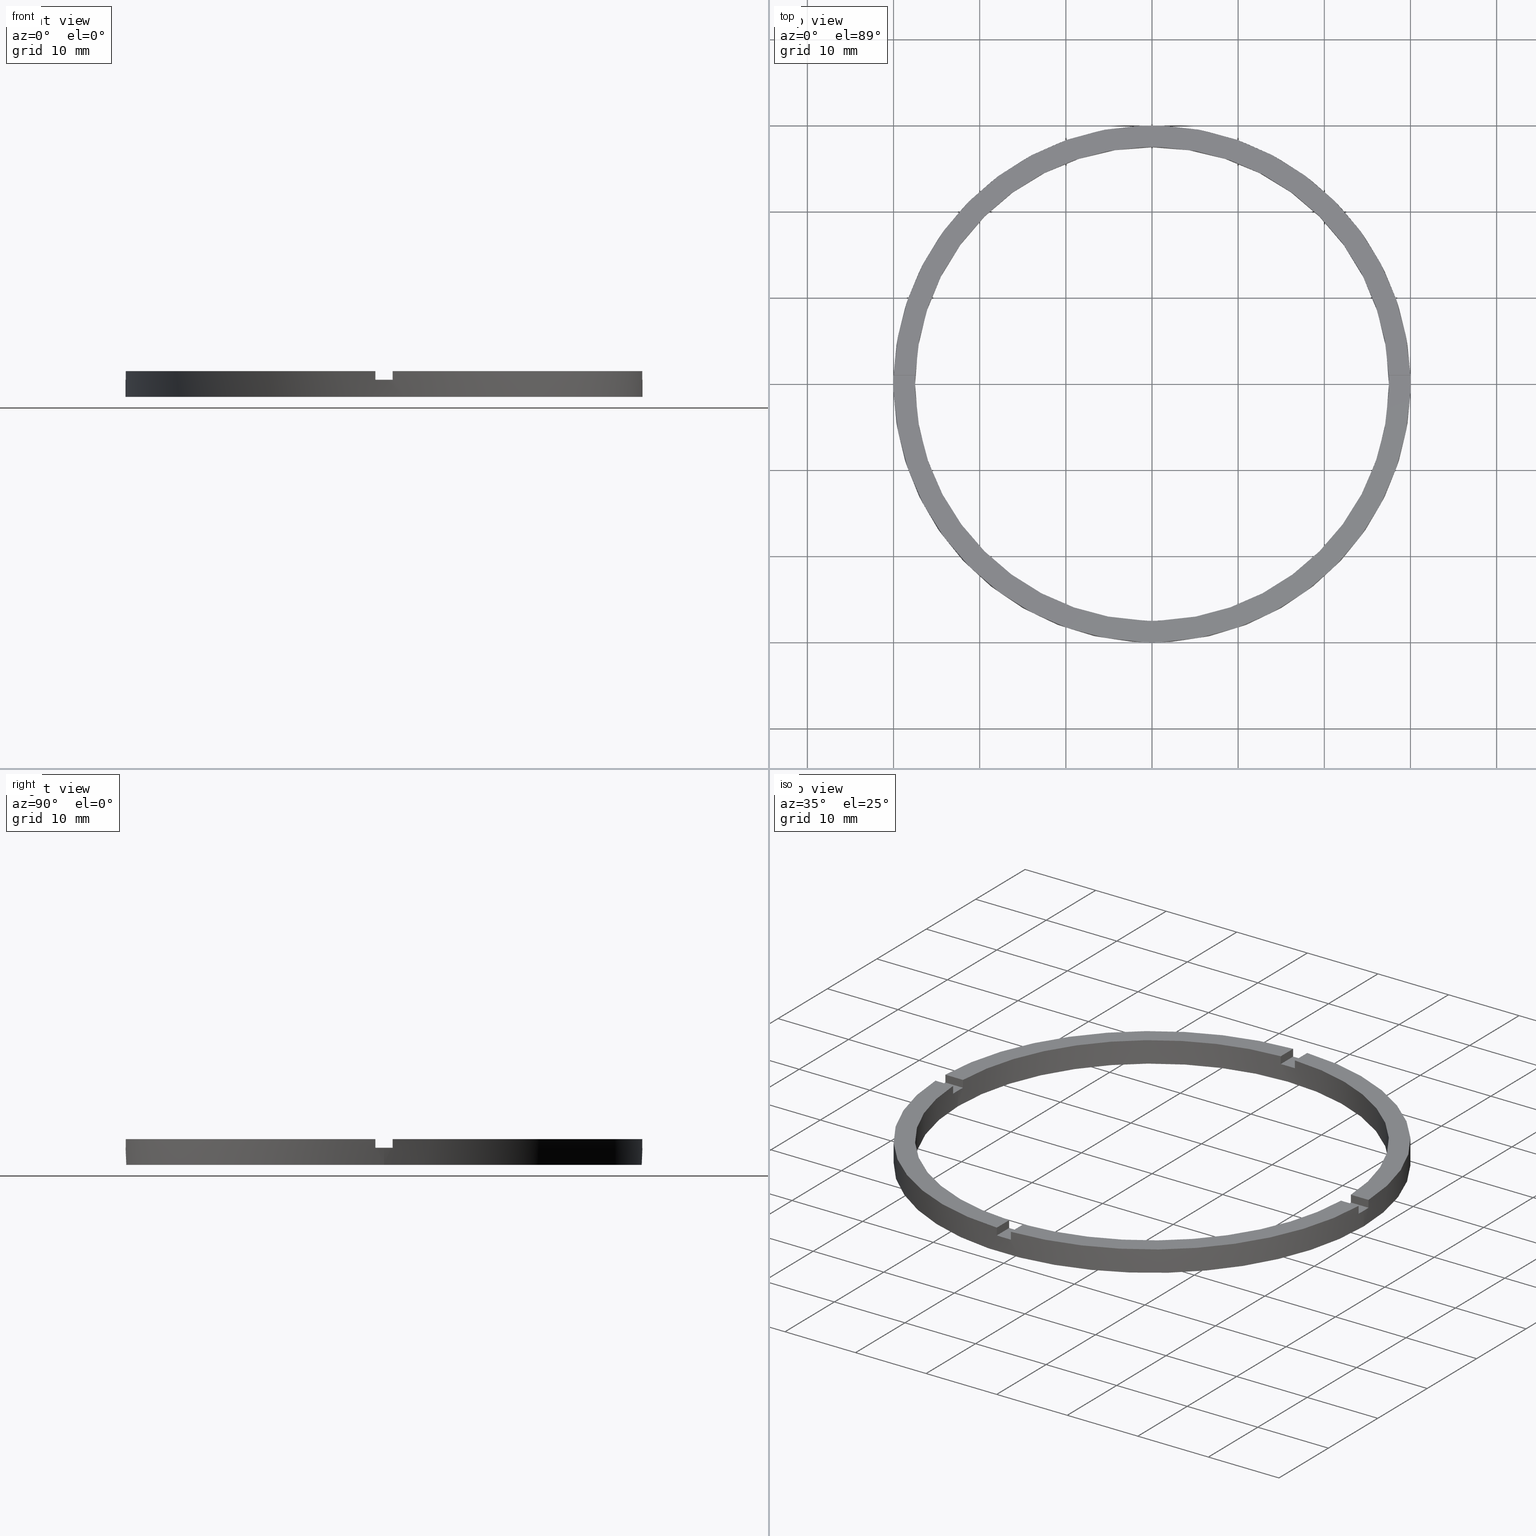
[diagram: canonical four-view strip — front | top / right | iso, engineering-drawing reading convention]
A machine part, canonical four-view strip (front | top / right | iso — engineering-drawing reading convention). The complete STEP part file that produces these views, byte-faithful:
ISO-10303-21;
HEADER;
FILE_DESCRIPTION (( 'STEP AP203' ),
    '1' );
FILE_NAME ('514124.step',
    '2024-12-26T02:39:47',
    ( 'MSI' ),
    ( '' ),
    'SwSTEP 2.0',
    'SolidWorks 2020',
    '' );
FILE_SCHEMA (( 'CONFIG_CONTROL_DESIGN' ));
ENDSEC;

DATA;
#1 = ORIENTED_EDGE ( 'NONE', *, *, #680, .T. ) ;
#2 = ORIENTED_EDGE ( 'NONE', *, *, #440, .F. ) ;
#3 = ORIENTED_EDGE ( 'NONE', *, *, #481, .T. ) ;
#4 = DIRECTION ( 'NONE',  ( 0.000000000000000000, 0.000000000000000000, 1.000000000000000000 ) ) ;
#5 = DIRECTION ( 'NONE',  ( 0.000000000000000000, 0.000000000000000000, 1.000000000000000000 ) ) ;
#6 = CC_DESIGN_DATE_AND_TIME_ASSIGNMENT ( #98, #469, ( #209 ) ) ;
#7 = EDGE_CURVE ( 'NONE', #695, #178, #728, .T. ) ;
#8 = DIRECTION ( 'NONE',  ( 0.000000000000000000, 0.000000000000000000, 1.000000000000000000 ) ) ;
#9 = DIRECTION ( 'NONE',  ( 1.000000000000000000, 0.000000000000000000, -0.000000000000000000 ) ) ;
#10 = CARTESIAN_POINT ( 'NONE',  ( 27.48181216732259458, 0.9999999999998436806, 3.000000000000000000 ) ) ;
#11 = EDGE_CURVE ( 'NONE', #430, #458, #204, .T. ) ;
#12 = DIRECTION ( 'NONE',  ( -0.000000000000000000, -0.000000000000000000, -1.000000000000000000 ) ) ;
#13 = VECTOR ( 'NONE', #657, 1000.000000000000000 ) ;
#14 = LINE ( 'NONE', #267, #279 ) ;
#15 = CARTESIAN_POINT ( 'NONE',  ( -1.000000000000159428, -27.48181216732258392, 3.000000000000000000 ) ) ;
#16 = DIRECTION ( 'NONE',  ( -0.000000000000000000, -0.000000000000000000, -1.000000000000000000 ) ) ;
#17 = DIRECTION ( 'NONE',  ( -1.951563910473907735E-16, 1.000000000000000000, 0.000000000000000000 ) ) ;
#18 =( NAMED_UNIT ( * ) SI_UNIT ( $, .STERADIAN. ) SOLID_ANGLE_UNIT ( ) );
#19 = FACE_OUTER_BOUND ( 'NONE', #399, .T. ) ;
#20 = EDGE_CURVE ( 'NONE', #464, #458, #719, .T. ) ;
#21 = CARTESIAN_POINT ( 'NONE',  ( -1.000000000000027089, 29.98332870112989568, 2.000000000000000000 ) ) ;
#22 = VECTOR ( 'NONE', #313, 1000.000000000000000 ) ;
#23 = DIRECTION ( 'NONE',  ( 0.000000000000000000, 0.000000000000000000, 1.000000000000000000 ) ) ;
#24 = DIRECTION ( 'NONE',  ( 0.000000000000000000, -0.000000000000000000, 1.000000000000000000 ) ) ;
#25 = DIRECTION ( 'NONE',  ( 1.000000000000000000, 0.000000000000000000, 0.000000000000000000 ) ) ;
#26 = FACE_OUTER_BOUND ( 'NONE', #684, .T. ) ;
#27 = VECTOR ( 'NONE', #537, 1000.000000000000000 ) ;
#28 = PLANE ( 'NONE',  #439 ) ;
#29 = FACE_OUTER_BOUND ( 'NONE', #169, .T. ) ;
#30 = DIRECTION ( 'NONE',  ( -1.000000000000000000, 2.168404344971008560E-17, 0.000000000000000000 ) ) ;
#31 = DIRECTION ( 'NONE',  ( 1.000000000000000000, 0.000000000000000000, 0.000000000000000000 ) ) ;
#32 = FACE_OUTER_BOUND ( 'NONE', #685, .T. ) ;
#33 = LINE ( 'NONE', #15, #296 ) ;
#34 = CIRCLE ( 'NONE', #760, 27.50000000000000000 ) ;
#35 = LINE ( 'NONE', #554, #299 ) ;
#36 = CARTESIAN_POINT ( 'NONE',  ( -27.48181216732259102, 0.9999999999999722444, 2.000000000000000000 ) ) ;
#37 = CIRCLE ( 'NONE', #153, 27.50000000000000000 ) ;
#38 = FACE_OUTER_BOUND ( 'NONE', #168, .T. ) ;
#39 = APPROVAL_DATE_TIME ( #41, #475 ) ;
#40 = CARTESIAN_POINT ( 'NONE',  ( 19.99999999999999289, -1.000000000000156763, 2.000000000000000000 ) ) ;
#41 = DATE_AND_TIME ( #559, #605 ) ;
#42 = VECTOR ( 'NONE', #16, 1000.000000000000000 ) ;
#43 = PRODUCT_DEFINITION_FORMATION_WITH_SPECIFIED_SOURCE ( '�κ�', '', #176, .NOT_KNOWN. ) ;
#44 = EDGE_CURVE ( 'NONE', #431, #124, #722, .T. ) ;
#45 = AXIS2_PLACEMENT_3D ( 'NONE', #59, #265, #444 ) ;
#46 = DIRECTION ( 'NONE',  ( -0.000000000000000000, -0.000000000000000000, -1.000000000000000000 ) ) ;
#47 = DIRECTION ( 'NONE',  ( 1.000000000000000000, 0.000000000000000000, 0.000000000000000000 ) ) ;
#48 = EDGE_CURVE ( 'NONE', #763, #777, #471, .T. ) ;
#49 = ADVANCED_FACE ( 'NONE', ( #278 ), #587, .T. ) ;
#50 = DIRECTION ( 'NONE',  ( -1.301042606982605074E-16, 1.000000000000000000, -0.000000000000000000 ) ) ;
#51 = AXIS2_PLACEMENT_3D ( 'NONE', #626, #574, #225 ) ;
#52 = DIRECTION ( 'NONE',  ( -1.000000000000000000, -1.951563910473907735E-16, 0.000000000000000000 ) ) ;
#53 = CARTESIAN_POINT ( 'NONE',  ( 29.98332870112989212, -1.000000000000156097, 2.000000000000000000 ) ) ;
#54 = AXIS2_PLACEMENT_3D ( 'NONE', #368, #648, #729 ) ;
#55 = DIRECTION ( 'NONE',  ( 2.168404344971008560E-17, 1.000000000000000000, 0.000000000000000000 ) ) ;
#56 = PLANE ( 'NONE',  #371 ) ;
#57 = VECTOR ( 'NONE', #46, 1000.000000000000000 ) ;
#58 = CARTESIAN_POINT ( 'NONE',  ( -1.000000000000027089, 27.48181216732259102, 3.000000000000000000 ) ) ;
#59 = CARTESIAN_POINT ( 'NONE',  ( 0.000000000000000000, 0.000000000000000000, 3.000000000000000000 ) ) ;
#60 = ADVANCED_FACE ( 'NONE', ( #528 ), #56, .F. ) ;
#61 = CARTESIAN_POINT ( 'NONE',  ( 0.000000000000000000, 0.000000000000000000, 2.000000000000000000 ) ) ;
#62 = LINE ( 'NONE', #776, #345 ) ;
#63 = CARTESIAN_POINT ( 'NONE',  ( 0.000000000000000000, 0.000000000000000000, 2.000000000000000000 ) ) ;
#64 = CIRCLE ( 'NONE', #580, 30.00000000000000000 ) ;
#65 = DIRECTION ( 'NONE',  ( 0.000000000000000000, 0.000000000000000000, 1.000000000000000000 ) ) ;
#66 = VECTOR ( 'NONE', #419, 1000.000000000000000 ) ;
#67 = DIRECTION ( 'NONE',  ( -0.000000000000000000, -0.000000000000000000, -1.000000000000000000 ) ) ;
#68 = ORGANIZATION ( 'δָ��', 'δָ��', '' ) ;
#69 = DIRECTION ( 'NONE',  ( -1.301042606982605074E-16, 1.000000000000000000, -0.000000000000000000 ) ) ;
#70 = LINE ( 'NONE', #449, #337 ) ;
#71 = PERSON_AND_ORGANIZATION ( #486, #68 ) ;
#72 = CARTESIAN_POINT ( 'NONE',  ( 0.000000000000000000, 0.000000000000000000, 0.000000000000000000 ) ) ;
#73 = PERSON_AND_ORGANIZATION ( #486, #68 ) ;
#74 = CARTESIAN_POINT ( 'NONE',  ( 30.00000000000000000, 3.673940397442059178E-15, 3.000000000000000000 ) ) ;
#75 = LINE ( 'NONE', #493, #333 ) ;
#76 = DIRECTION ( 'NONE',  ( 1.000000000000000000, 0.000000000000000000, 0.000000000000000000 ) ) ;
#77 = CARTESIAN_POINT ( 'NONE',  ( 0.000000000000000000, 0.000000000000000000, 0.000000000000000000 ) ) ;
#78 = LINE ( 'NONE', #294, #586 ) ;
#79 = AXIS2_PLACEMENT_3D ( 'NONE', #781, #110, #164 ) ;
#80 = LINE ( 'NONE', #370, #570 ) ;
#81 = CARTESIAN_POINT ( 'NONE',  ( -1.000000000000027311, 19.99999999999999645, 3.000000000000000000 ) ) ;
#82 = CYLINDRICAL_SURFACE ( 'NONE', #614, 27.50000000000000000 ) ;
#83 = CARTESIAN_POINT ( 'NONE',  ( 0.9999999999998406830, -27.48181216732259458, 3.000000000000000000 ) ) ;
#84 = APPROVAL_STATUS ( 'not_yet_approved' ) ;
#85 = FACE_OUTER_BOUND ( 'NONE', #636, .T. ) ;
#86 = CIRCLE ( 'NONE', #232, 27.50000000000000000 ) ;
#87 = EDGE_CURVE ( 'NONE', #427, #777, #541, .T. ) ;
#88 = APPROVAL_DATE_TIME ( #611, #646 ) ;
#89 = DIRECTION ( 'NONE',  ( 2.168404344971008560E-17, 1.000000000000000000, 0.000000000000000000 ) ) ;
#90 = COORDINATED_UNIVERSAL_TIME_OFFSET ( 8, 0, .AHEAD. ) ;
#91 = PERSON_AND_ORGANIZATION_ROLE ( 'classification_officer' ) ;
#92 = PERSON_AND_ORGANIZATION ( #486, #68 ) ;
#93 = AXIS2_PLACEMENT_3D ( 'NONE', #226, #269, #25 ) ;
#94 = PERSON_AND_ORGANIZATION ( #486, #68 ) ;
#95 = DATE_AND_TIME ( #613, #600 ) ;
#96 = PERSON_AND_ORGANIZATION ( #486, #68 ) ;
#97 = CARTESIAN_POINT ( 'NONE',  ( 0.000000000000000000, 0.000000000000000000, 2.000000000000000000 ) ) ;
#98 = DATE_AND_TIME ( #100, #358 ) ;
#99 = LOCAL_TIME ( 10, 39, 47.00000000000000000, #90 ) ;
#100 = CALENDAR_DATE ( 2024, 26, 12 ) ;
#101 = ADVANCED_FACE ( 'NONE', ( #29 ), #542, .T. ) ;
#102 = CALENDAR_DATE ( 2024, 26, 12 ) ;
#103 = CARTESIAN_POINT ( 'NONE',  ( 0.9999999999998406830, -27.48181216732259458, 2.000000000000000000 ) ) ;
#104 = AXIS2_PLACEMENT_3D ( 'NONE', #434, #734, #212 ) ;
#105 = CARTESIAN_POINT ( 'NONE',  ( -30.00000000000000000, 0.000000000000000000, 3.000000000000000000 ) ) ;
#106 = ADVANCED_FACE ( 'NONE', ( #19 ), #190, .T. ) ;
#107 = CC_DESIGN_PERSON_AND_ORGANIZATION_ASSIGNMENT ( #361, #672, ( #209 ) ) ;
#108 = CYLINDRICAL_SURFACE ( 'NONE', #192, 27.50000000000000000 ) ;
#109 = EDGE_CURVE ( 'NONE', #257, #701, #548, .T. ) ;
#110 = DIRECTION ( 'NONE',  ( 0.000000000000000000, 0.000000000000000000, 1.000000000000000000 ) ) ;
#111 = CARTESIAN_POINT ( 'NONE',  ( 30.00000000000000000, 3.673940397442059178E-15, 0.000000000000000000 ) ) ;
#112 = ADVANCED_FACE ( 'NONE', ( #32 ), #549, .F. ) ;
#113 = VERTEX_POINT ( 'NONE', #201 ) ;
#114 = VECTOR ( 'NONE', #174, 1000.000000000000000 ) ;
#115 = EDGE_CURVE ( 'NONE', #113, #234, #553, .T. ) ;
#116 = ORIENTED_EDGE ( 'NONE', *, *, #382, .F. ) ;
#117 = DIRECTION ( 'NONE',  ( -0.000000000000000000, -0.000000000000000000, -1.000000000000000000 ) ) ;
#118 = CARTESIAN_POINT ( 'NONE',  ( 19.99999999999998934, 0.9999999999998432365, 2.000000000000000000 ) ) ;
#119 = AXIS2_PLACEMENT_3D ( 'NONE', #310, #240, #306 ) ;
#120 = ORIENTED_EDGE ( 'NONE', *, *, #290, .T. ) ;
#121 = ORIENTED_EDGE ( 'NONE', *, *, #647, .T. ) ;
#122 = CARTESIAN_POINT ( 'NONE',  ( -27.50000000000000000, 0.000000000000000000, 0.000000000000000000 ) ) ;
#123 = DIRECTION ( 'NONE',  ( 1.000000000000000000, 0.000000000000000000, 0.000000000000000000 ) ) ;
#124 = VERTEX_POINT ( 'NONE', #417 ) ;
#125 = CARTESIAN_POINT ( 'NONE',  ( -1.000000000000027089, 27.48181216732259102, 3.000000000000000000 ) ) ;
#126 = ORIENTED_EDGE ( 'NONE', *, *, #235, .T. ) ;
#127 = EDGE_CURVE ( 'NONE', #395, #777, #14, .T. ) ;
#128 = ADVANCED_FACE ( 'NONE', ( #530 ), #293, .T. ) ;
#129 = DIRECTION ( 'NONE',  ( -0.000000000000000000, -0.000000000000000000, -1.000000000000000000 ) ) ;
#130 = ORIENTED_EDGE ( 'NONE', *, *, #327, .F. ) ;
#131 = DIRECTION ( 'NONE',  ( -0.000000000000000000, -0.000000000000000000, -1.000000000000000000 ) ) ;
#132 = ORIENTED_EDGE ( 'NONE', *, *, #516, .F. ) ;
#133 = DIRECTION ( 'NONE',  ( 1.301042606982605074E-16, -1.000000000000000000, 0.000000000000000000 ) ) ;
#134 = CARTESIAN_POINT ( 'NONE',  ( 30.00000000000000000, 3.673940397442059178E-15, 2.000000000000000000 ) ) ;
#135 = PRODUCT_DEFINITION_SHAPE ( 'NONE', 'NONE',  #209 ) ;
#136 = DIRECTION ( 'NONE',  ( 1.000000000000000000, 0.000000000000000000, -0.000000000000000000 ) ) ;
#137 = CARTESIAN_POINT ( 'NONE',  ( 0.000000000000000000, 0.000000000000000000, 3.000000000000000000 ) ) ;
#138 = PERSON_AND_ORGANIZATION_ROLE ( 'design_owner' ) ;
#139 = CARTESIAN_POINT ( 'NONE',  ( 27.50000000000000000, 3.367778697655221307E-15, 3.000000000000000000 ) ) ;
#140 = DIRECTION ( 'NONE',  ( -2.168404344971008560E-17, -1.000000000000000000, -0.000000000000000000 ) ) ;
#141 = CC_DESIGN_PERSON_AND_ORGANIZATION_ASSIGNMENT ( #94, #562, ( #43 ) ) ;
#142 = DIRECTION ( 'NONE',  ( 1.000000000000000000, 0.000000000000000000, 0.000000000000000000 ) ) ;
#143 = SECURITY_CLASSIFICATION_LEVEL ( 'unclassified' ) ;
#144 = ORIENTED_EDGE ( 'NONE', *, *, #769, .F. ) ;
#145 = CARTESIAN_POINT ( 'NONE',  ( 0.9999999999998397948, -20.00000000000017764, 2.000000000000000000 ) ) ;
#146 = PLANE ( 'NONE',  #511 ) ;
#147 = CARTESIAN_POINT ( 'NONE',  ( 0.9999999999999729106, 27.48181216732259102, 2.000000000000000000 ) ) ;
#148 = ORIENTED_EDGE ( 'NONE', *, *, #731, .F. ) ;
#149 = EDGE_CURVE ( 'NONE', #234, #521, #532, .T. ) ;
#150 = ORIENTED_EDGE ( 'NONE', *, *, #115, .F. ) ;
#151 = CARTESIAN_POINT ( 'NONE',  ( 0.000000000000000000, 0.000000000000000000, 2.000000000000000000 ) ) ;
#152 = DIRECTION ( 'NONE',  ( 0.000000000000000000, 0.000000000000000000, 1.000000000000000000 ) ) ;
#153 = AXIS2_PLACEMENT_3D ( 'NONE', #72, #8, #649 ) ;
#154 = ORIENTED_EDGE ( 'NONE', *, *, #480, .F. ) ;
#155 = ORIENTED_EDGE ( 'NONE', *, *, #727, .F. ) ;
#156 = EDGE_CURVE ( 'NONE', #695, #446, #281, .T. ) ;
#157 = EDGE_CURVE ( 'NONE', #241, #690, #285, .T. ) ;
#158 = ORIENTED_EDGE ( 'NONE', *, *, #149, .F. ) ;
#159 = VECTOR ( 'NONE', #500, 1000.000000000000000 ) ;
#160 = DIRECTION ( 'NONE',  ( 1.301042606982605074E-16, -1.000000000000000000, 0.000000000000000000 ) ) ;
#161 = LINE ( 'NONE', #250, #423 ) ;
#162 = EDGE_LOOP ( 'NONE', ( #126, #670, #158, #718 ) ) ;
#163 = EDGE_LOOP ( 'NONE', ( #435, #456, #466, #732, #263, #441 ) ) ;
#164 = DIRECTION ( 'NONE',  ( 1.000000000000000000, 0.000000000000000000, -0.000000000000000000 ) ) ;
#165 = DIRECTION ( 'NONE',  ( -0.000000000000000000, -0.000000000000000000, -1.000000000000000000 ) ) ;
#166 = EDGE_LOOP ( 'NONE', ( #774, #708, #778, #173, #492, #243, #499, #749, #191, #150, #762, #715 ) ) ;
#167 = ORIENTED_EDGE ( 'NONE', *, *, #540, .T. ) ;
#168 = EDGE_LOOP ( 'NONE', ( #195, #723, #676, #416 ) ) ;
#169 = EDGE_LOOP ( 'NONE', ( #386, #259, #220, #637, #221, #193 ) ) ;
#170 = ADVANCED_FACE ( 'NONE', ( #26 ), #421, .T. ) ;
#171 = DIRECTION ( 'NONE',  ( 0.000000000000000000, -0.000000000000000000, 1.000000000000000000 ) ) ;
#172 = CARTESIAN_POINT ( 'NONE',  ( -29.98332870112989923, 0.9999999999999718003, 3.000000000000000000 ) ) ;
#173 = ORIENTED_EDGE ( 'NONE', *, *, #757, .F. ) ;
#174 = DIRECTION ( 'NONE',  ( 0.000000000000000000, 0.000000000000000000, 1.000000000000000000 ) ) ;
#175 = ORIENTED_EDGE ( 'NONE', *, *, #544, .T. ) ;
#176 = PRODUCT ( '514124', '514124', '', ( #448 ) ) ;
#177 = VERTEX_POINT ( 'NONE', #213 ) ;
#178 = VERTEX_POINT ( 'NONE', #437 ) ;
#179 = ORIENTED_EDGE ( 'NONE', *, *, #598, .T. ) ;
#180 = DIRECTION ( 'NONE',  ( 1.000000000000000000, 0.000000000000000000, 0.000000000000000000 ) ) ;
#181 = EDGE_LOOP ( 'NONE', ( #443, #470, #394, #3 ) ) ;
#182 = CARTESIAN_POINT ( 'NONE',  ( 0.9999999999998397948, -20.00000000000017764, 3.000000000000000000 ) ) ;
#183 = ORIENTED_EDGE ( 'NONE', *, *, #331, .T. ) ;
#184 = PRODUCT_RELATED_PRODUCT_CATEGORY ( 'detail', '', ( #176 ) ) ;
#185 = ORIENTED_EDGE ( 'NONE', *, *, #245, .T. ) ;
#186 = ORIENTED_EDGE ( 'NONE', *, *, #197, .F. ) ;
#187 = ORIENTED_EDGE ( 'NONE', *, *, #765, .T. ) ;
#188 = ORIENTED_EDGE ( 'NONE', *, *, #615, .T. ) ;
#189 = CIRCLE ( 'NONE', #414, 30.00000000000000000 ) ;
#190 = PLANE ( 'NONE',  #258 ) ;
#191 = ORIENTED_EDGE ( 'NONE', *, *, #401, .T. ) ;
#192 = AXIS2_PLACEMENT_3D ( 'NONE', #505, #198, #656 ) ;
#193 = ORIENTED_EDGE ( 'NONE', *, *, #603, .T. ) ;
#194 = DIRECTION ( 'NONE',  ( -0.000000000000000000, 0.000000000000000000, 1.000000000000000000 ) ) ;
#195 = ORIENTED_EDGE ( 'NONE', *, *, #433, .T. ) ;
#196 = VECTOR ( 'NONE', #55, 1000.000000000000000 ) ;
#197 = EDGE_CURVE ( 'NONE', #674, #395, #34, .T. ) ;
#198 = DIRECTION ( 'NONE',  ( -0.000000000000000000, -0.000000000000000000, -1.000000000000000000 ) ) ;
#199 = ORIENTED_EDGE ( 'NONE', *, *, #727, .T. ) ;
#200 = ORIENTED_EDGE ( 'NONE', *, *, #575, .T. ) ;
#201 = CARTESIAN_POINT ( 'NONE',  ( -30.00000000000000000, 0.000000000000000000, 2.000000000000000000 ) ) ;
#202 = VECTOR ( 'NONE', #52, 1000.000000000000000 ) ;
#203 = EDGE_CURVE ( 'NONE', #495, #124, #287, .T. ) ;
#204 = LINE ( 'NONE', #577, #467 ) ;
#205 = ORIENTED_EDGE ( 'NONE', *, *, #731, .T. ) ;
#206 = VECTOR ( 'NONE', #360, 1000.000000000000000 ) ;
#207 = DIRECTION ( 'NONE',  ( 0.000000000000000000, 0.000000000000000000, 1.000000000000000000 ) ) ;
#208 = ORIENTED_EDGE ( 'NONE', *, *, #156, .F. ) ;
#209 = PRODUCT_DEFINITION ( 'δ֪', '', #43, #619 ) ;
#210 = ORIENTED_EDGE ( 'NONE', *, *, #773, .T. ) ;
#211 = ORIENTED_EDGE ( 'NONE', *, *, #157, .T. ) ;
#212 = DIRECTION ( 'NONE',  ( 1.000000000000000000, 0.000000000000000000, 0.000000000000000000 ) ) ;
#213 = CARTESIAN_POINT ( 'NONE',  ( 29.98332870112989212, -1.000000000000156097, 3.000000000000000000 ) ) ;
#214 = APPROVAL_STATUS ( 'not_yet_approved' ) ;
#215 = DIRECTION ( 'NONE',  ( -0.000000000000000000, -0.000000000000000000, -1.000000000000000000 ) ) ;
#216 = VERTEX_POINT ( 'NONE', #653 ) ;
#217 = PLANE ( 'NONE',  #426 ) ;
#218 = PLANE ( 'NONE',  #535 ) ;
#219 = ORIENTED_EDGE ( 'NONE', *, *, #516, .T. ) ;
#220 = ORIENTED_EDGE ( 'NONE', *, *, #453, .T. ) ;
#221 = ORIENTED_EDGE ( 'NONE', *, *, #307, .F. ) ;
#222 = CARTESIAN_POINT ( 'NONE',  ( -1.000000000000158984, -29.98332870112989212, 2.000000000000000000 ) ) ;
#223 = CARTESIAN_POINT ( 'NONE',  ( -20.00000000000018119, -1.000000000000026201, 3.000000000000000000 ) ) ;
#224 = DIRECTION ( 'NONE',  ( 0.000000000000000000, 0.000000000000000000, 1.000000000000000000 ) ) ;
#225 = DIRECTION ( 'NONE',  ( 1.000000000000000000, 0.000000000000000000, 0.000000000000000000 ) ) ;
#226 = CARTESIAN_POINT ( 'NONE',  ( 0.000000000000000000, 0.000000000000000000, 0.000000000000000000 ) ) ;
#227 = FACE_OUTER_BOUND ( 'NONE', #703, .T. ) ;
#228 = LINE ( 'NONE', #81, #487 ) ;
#229 = ADVANCED_FACE ( 'NONE', ( #543 ), #146, .T. ) ;
#230 = SECURITY_CLASSIFICATION ( '', '', #143 ) ;
#231 = CARTESIAN_POINT ( 'NONE',  ( 0.000000000000000000, 0.000000000000000000, 3.000000000000000000 ) ) ;
#232 = AXIS2_PLACEMENT_3D ( 'NONE', #389, #771, #673 ) ;
#233 = ORIENTED_EDGE ( 'NONE', *, *, #480, .T. ) ;
#234 = VERTEX_POINT ( 'NONE', #679 ) ;
#235 = EDGE_CURVE ( 'NONE', #763, #674, #291, .T. ) ;
#236 = CARTESIAN_POINT ( 'NONE',  ( 0.000000000000000000, 0.000000000000000000, 3.000000000000000000 ) ) ;
#237 = ORIENTED_EDGE ( 'NONE', *, *, #48, .T. ) ;
#238 = ORIENTED_EDGE ( 'NONE', *, *, #536, .F. ) ;
#239 = EDGE_LOOP ( 'NONE', ( #410, #422, #713, #383 ) ) ;
#240 = DIRECTION ( 'NONE',  ( 0.000000000000000000, 0.000000000000000000, 1.000000000000000000 ) ) ;
#241 = VERTEX_POINT ( 'NONE', #519 ) ;
#242 = VECTOR ( 'NONE', #50, 1000.000000000000000 ) ;
#243 = ORIENTED_EDGE ( 'NONE', *, *, #598, .F. ) ;
#244 = FACE_OUTER_BOUND ( 'NONE', #638, .T. ) ;
#245 = EDGE_CURVE ( 'NONE', #253, #177, #292, .T. ) ;
#246 = CARTESIAN_POINT ( 'NONE',  ( -27.48181216732259102, -1.000000000000027756, 2.000000000000000000 ) ) ;
#247 = CARTESIAN_POINT ( 'NONE',  ( -1.000000000000027311, 19.99999999999999645, 2.000000000000000000 ) ) ;
#248 = CARTESIAN_POINT ( 'NONE',  ( 27.50000000000000000, 3.367778697655221307E-15, 2.000000000000000000 ) ) ;
#249 = EDGE_LOOP ( 'NONE', ( #702, #199, #185, #651 ) ) ;
#250 = CARTESIAN_POINT ( 'NONE',  ( -27.50000000000000000, 0.000000000000000000, 3.000000000000000000 ) ) ;
#251 = ADVANCED_FACE ( 'NONE', ( #38 ), #561, .F. ) ;
#252 = DIRECTION ( 'NONE',  ( 1.000000000000000000, 1.951563910473907735E-16, -0.000000000000000000 ) ) ;
#253 = VERTEX_POINT ( 'NONE', #330 ) ;
#254 = CARTESIAN_POINT ( 'NONE',  ( 0.000000000000000000, 0.000000000000000000, 2.000000000000000000 ) ) ;
#255 = VERTEX_POINT ( 'NONE', #459 ) ;
#256 = DIRECTION ( 'NONE',  ( -1.000000000000000000, 0.000000000000000000, 0.000000000000000000 ) ) ;
#257 = VERTEX_POINT ( 'NONE', #468 ) ;
#258 = AXIS2_PLACEMENT_3D ( 'NONE', #739, #750, #428 ) ;
#259 = ORIENTED_EDGE ( 'NONE', *, *, #20, .T. ) ;
#260 = DIRECTION ( 'NONE',  ( -1.000000000000000000, -6.505213034913025371E-17, -0.000000000000000000 ) ) ;
#261 = ORIENTED_EDGE ( 'NONE', *, *, #481, .F. ) ;
#262 = DIRECTION ( 'NONE',  ( 1.000000000000000000, 0.000000000000000000, 0.000000000000000000 ) ) ;
#263 = ORIENTED_EDGE ( 'NONE', *, *, #540, .F. ) ;
#264 = CARTESIAN_POINT ( 'NONE',  ( -1.000000000000027089, 29.98332870112989568, 3.000000000000000000 ) ) ;
#265 = DIRECTION ( 'NONE',  ( 0.000000000000000000, 0.000000000000000000, 1.000000000000000000 ) ) ;
#266 = AXIS2_PLACEMENT_3D ( 'NONE', #641, #289, #160 ) ;
#267 = CARTESIAN_POINT ( 'NONE',  ( -1.000000000000160316, -20.00000000000017764, 3.000000000000000000 ) ) ;
#268 = APPROVAL_ROLE ( '' ) ;
#269 = DIRECTION ( 'NONE',  ( 0.000000000000000000, 0.000000000000000000, 1.000000000000000000 ) ) ;
#270 = DIRECTION ( 'NONE',  ( 1.000000000000000000, 1.301042606982605074E-16, 0.000000000000000000 ) ) ;
#271 = DIRECTION ( 'NONE',  ( -2.168404344971008560E-17, -1.000000000000000000, 0.000000000000000000 ) ) ;
#272 = EDGE_CURVE ( 'NONE', #178, #113, #301, .T. ) ;
#273 = CARTESIAN_POINT ( 'NONE',  ( -30.00000000000000000, 0.000000000000000000, 0.000000000000000000 ) ) ;
#274 = CARTESIAN_POINT ( 'NONE',  ( 29.98332870112990278, 0.9999999999998439026, 3.000000000000000000 ) ) ;
#275 = CARTESIAN_POINT ( 'NONE',  ( 19.99999999999999289, -1.000000000000156763, 3.000000000000000000 ) ) ;
#276 = APPROVAL_ROLE ( '' ) ;
#277 = CARTESIAN_POINT ( 'NONE',  ( 0.9999999999998411271, -29.98332870112990278, 3.000000000000000000 ) ) ;
#278 = FACE_OUTER_BOUND ( 'NONE', #752, .T. ) ;
#279 = VECTOR ( 'NONE', #133, 1000.000000000000000 ) ;
#280 = AXIS2_PLACEMENT_3D ( 'NONE', #381, #490, #671 ) ;
#281 = LINE ( 'NONE', #507, #534 ) ;
#282 = VECTOR ( 'NONE', #65, 1000.000000000000000 ) ;
#283 = DIRECTION ( 'NONE',  ( 1.000000000000000000, 0.000000000000000000, 0.000000000000000000 ) ) ;
#284 = VECTOR ( 'NONE', #252, 1000.000000000000000 ) ;
#285 = LINE ( 'NONE', #83, #22 ) ;
#286 = CC_DESIGN_PERSON_AND_ORGANIZATION_ASSIGNMENT ( #96, #91, ( #230 ) ) ;
#287 = LINE ( 'NONE', #125, #27 ) ;
#288 = CARTESIAN_POINT ( 'NONE',  ( -20.00000000000018119, 0.9999999999999737987, 2.000000000000000000 ) ) ;
#289 = DIRECTION ( 'NONE',  ( -1.000000000000000000, -1.301042606982605074E-16, 0.000000000000000000 ) ) ;
#290 = EDGE_CURVE ( 'NONE', #464, #509, #557, .T. ) ;
#291 = LINE ( 'NONE', #223, #545 ) ;
#292 = LINE ( 'NONE', #275, #297 ) ;
#293 = CYLINDRICAL_SURFACE ( 'NONE', #631, 30.00000000000000000 ) ;
#294 = CARTESIAN_POINT ( 'NONE',  ( -29.98332870112989923, 0.9999999999999718003, 3.000000000000000000 ) ) ;
#295 = DIRECTION ( 'NONE',  ( 1.000000000000000000, 0.000000000000000000, 0.000000000000000000 ) ) ;
#296 = VECTOR ( 'NONE', #610, 1000.000000000000000 ) ;
#297 = VECTOR ( 'NONE', #564, 1000.000000000000000 ) ;
#298 = EDGE_CURVE ( 'NONE', #699, #690, #700, .T. ) ;
#299 = VECTOR ( 'NONE', #260, 1000.000000000000000 ) ;
#300 = ADVANCED_FACE ( 'NONE', ( #442 ), #596, .T. ) ;
#301 = CIRCLE ( 'NONE', #588, 30.00000000000000000 ) ;
#302 = AXIS2_PLACEMENT_3D ( 'NONE', #782, #4, #47 ) ;
#303 = EDGE_CURVE ( 'NONE', #761, #504, #189, .T. ) ;
#304 = EDGE_CURVE ( 'NONE', #711, #257, #455, .T. ) ;
#305 = DIRECTION ( 'NONE',  ( 0.000000000000000000, 0.000000000000000000, 1.000000000000000000 ) ) ;
#306 = DIRECTION ( 'NONE',  ( 1.000000000000000000, 0.000000000000000000, 0.000000000000000000 ) ) ;
#307 = EDGE_CURVE ( 'NONE', #452, #518, #418, .T. ) ;
#308 = DIRECTION ( 'NONE',  ( 0.000000000000000000, -0.000000000000000000, 1.000000000000000000 ) ) ;
#309 = CC_DESIGN_APPROVAL ( #646, ( #209 ) ) ;
#310 = CARTESIAN_POINT ( 'NONE',  ( 0.000000000000000000, 0.000000000000000000, 3.000000000000000000 ) ) ;
#311 = CARTESIAN_POINT ( 'NONE',  ( 0.000000000000000000, 0.000000000000000000, 3.000000000000000000 ) ) ;
#312 = SHAPE_DEFINITION_REPRESENTATION ( #135, #725 ) ;
#313 = DIRECTION ( 'NONE',  ( -0.000000000000000000, -0.000000000000000000, -1.000000000000000000 ) ) ;
#314 = CARTESIAN_POINT ( 'NONE',  ( -1.000000000000158984, -29.98332870112989212, 3.000000000000000000 ) ) ;
#315 = CARTESIAN_POINT ( 'NONE',  ( -27.48181216732259102, -1.000000000000027756, 3.000000000000000000 ) ) ;
#316 = DIRECTION ( 'NONE',  ( 0.000000000000000000, 0.000000000000000000, 1.000000000000000000 ) ) ;
#317 = CARTESIAN_POINT ( 'NONE',  ( -1.000000000000158984, -29.98332870112989212, 3.000000000000000000 ) ) ;
#318 = FACE_OUTER_BOUND ( 'NONE', #472, .T. ) ;
#319 = CIRCLE ( 'NONE', #484, 27.50000000000000000 ) ;
#320 = DIRECTION ( 'NONE',  ( 1.000000000000000000, -2.168404344971008560E-17, 0.000000000000000000 ) ) ;
#321 = EDGE_CURVE ( 'NONE', #241, #253, #412, .T. ) ;
#322 = DIRECTION ( 'NONE',  ( 0.000000000000000000, -0.000000000000000000, 1.000000000000000000 ) ) ;
#323 = DIRECTION ( 'NONE',  ( 1.000000000000000000, 6.505213034913025371E-17, 0.000000000000000000 ) ) ;
#324 = VECTOR ( 'NONE', #215, 1000.000000000000000 ) ;
#325 = AXIS2_PLACEMENT_3D ( 'NONE', #311, #374, #425 ) ;
#326 = CIRCLE ( 'NONE', #568, 30.00000000000000000 ) ;
#327 = EDGE_CURVE ( 'NONE', #674, #521, #668, .T. ) ;
#328 = FACE_OUTER_BOUND ( 'NONE', #249, .T. ) ;
#329 = LINE ( 'NONE', #372, #66 ) ;
#330 = CARTESIAN_POINT ( 'NONE',  ( 27.48181216732258392, -1.000000000000156319, 3.000000000000000000 ) ) ;
#331 = EDGE_CURVE ( 'NONE', #406, #497, #161, .T. ) ;
#332 = DATE_TIME_ROLE ( 'classification_date' ) ;
#333 = VECTOR ( 'NONE', #539, 1000.000000000000000 ) ;
#334 = FACE_OUTER_BOUND ( 'NONE', #758, .T. ) ;
#335 = PLANE ( 'NONE',  #376 ) ;
#336 = VECTOR ( 'NONE', #129, 1000.000000000000000 ) ;
#337 = VECTOR ( 'NONE', #508, 1000.000000000000000 ) ;
#338 = ADVANCED_FACE ( 'NONE', ( #681 ), #108, .F. ) ;
#339 = EDGE_CURVE ( 'NONE', #510, #177, #623, .T. ) ;
#340 = CIRCLE ( 'NONE', #119, 27.50000000000000000 ) ;
#341 = LINE ( 'NONE', #139, #324 ) ;
#342 = EDGE_CURVE ( 'NONE', #257, #431, #378, .T. ) ;
#343 = CARTESIAN_POINT ( 'NONE',  ( 27.50000000000000000, 3.367778697655221307E-15, 0.000000000000000000 ) ) ;
#344 = FACE_BOUND ( 'NONE', #697, .T. ) ;
#345 = VECTOR ( 'NONE', #479, 1000.000000000000000 ) ;
#346 = CIRCLE ( 'NONE', #768, 27.50000000000000000 ) ;
#347 = DIRECTION ( 'NONE',  ( -0.000000000000000000, -0.000000000000000000, -1.000000000000000000 ) ) ;
#348 = LINE ( 'NONE', #404, #584 ) ;
#349 = DIRECTION ( 'NONE',  ( 0.000000000000000000, 0.000000000000000000, 1.000000000000000000 ) ) ;
#350 = COORDINATED_UNIVERSAL_TIME_OFFSET ( 8, 0, .AHEAD. ) ;
#351 = CALENDAR_DATE ( 2024, 26, 12 ) ;
#352 = APPROVAL_PERSON_ORGANIZATION ( #92, #475, #276 ) ;
#353 = DIRECTION ( 'NONE',  ( 0.000000000000000000, 0.000000000000000000, 1.000000000000000000 ) ) ;
#354 = COORDINATED_UNIVERSAL_TIME_OFFSET ( 8, 0, .AHEAD. ) ;
#355 = CARTESIAN_POINT ( 'NONE',  ( 0.000000000000000000, 0.000000000000000000, 2.000000000000000000 ) ) ;
#356 = APPROVAL_PERSON_ORGANIZATION ( #618, #560, #268 ) ;
#357 = AXIS2_PLACEMENT_3D ( 'NONE', #745, #17, #501 ) ;
#358 = LOCAL_TIME ( 10, 39, 47.00000000000000000, #350 ) ;
#359 = COORDINATED_UNIVERSAL_TIME_OFFSET ( 8, 0, .AHEAD. ) ;
#360 = DIRECTION ( 'NONE',  ( -2.168404344971008560E-17, -1.000000000000000000, -0.000000000000000000 ) ) ;
#361 = PERSON_AND_ORGANIZATION ( #486, #68 ) ;
#362 = DIRECTION ( 'NONE',  ( -1.000000000000000000, 0.000000000000000000, 0.000000000000000000 ) ) ;
#363 = ADVANCED_FACE ( 'NONE', ( #373 ), #420, .T. ) ;
#364 = COORDINATED_UNIVERSAL_TIME_OFFSET ( 8, 0, .AHEAD. ) ;
#365 = CARTESIAN_POINT ( 'NONE',  ( 0.000000000000000000, 0.000000000000000000, 2.000000000000000000 ) ) ;
#366 = APPROVAL_DATE_TIME ( #95, #560 ) ;
#367 = CC_DESIGN_DATE_AND_TIME_ASSIGNMENT ( #602, #332, ( #230 ) ) ;
#368 = CARTESIAN_POINT ( 'NONE',  ( 0.000000000000000000, 0.000000000000000000, 3.000000000000000000 ) ) ;
#369 = AXIS2_PLACEMENT_3D ( 'NONE', #355, #194, #529 ) ;
#370 = CARTESIAN_POINT ( 'NONE',  ( 0.9999999999998411271, -29.98332870112990278, 3.000000000000000000 ) ) ;
#371 = AXIS2_PLACEMENT_3D ( 'NONE', #491, #538, #661 ) ;
#372 = CARTESIAN_POINT ( 'NONE',  ( 19.99999999999999289, -1.000000000000156763, 2.000000000000000000 ) ) ;
#373 = FACE_OUTER_BOUND ( 'NONE', #181, .T. ) ;
#374 = DIRECTION ( 'NONE',  ( 0.000000000000000000, 0.000000000000000000, 1.000000000000000000 ) ) ;
#375 = VECTOR ( 'NONE', #663, 1000.000000000000000 ) ;
#376 = AXIS2_PLACEMENT_3D ( 'NONE', #231, #524, #683 ) ;
#377 = CARTESIAN_POINT ( 'NONE',  ( 27.48181216732258392, -1.000000000000156319, 2.000000000000000000 ) ) ;
#378 = CIRCLE ( 'NONE', #639, 30.00000000000000000 ) ;
#379 = ORIENTED_EDGE ( 'NONE', *, *, #544, .F. ) ;
#380 = CARTESIAN_POINT ( 'NONE',  ( 0.9999999999998397948, -20.00000000000017764, 2.000000000000000000 ) ) ;
#381 = CARTESIAN_POINT ( 'NONE',  ( 0.000000000000000000, 0.000000000000000000, 2.000000000000000000 ) ) ;
#382 = EDGE_CURVE ( 'NONE', #446, #504, #627, .T. ) ;
#383 = ORIENTED_EDGE ( 'NONE', *, *, #304, .T. ) ;
#384 = APPROVAL_ROLE ( '' ) ;
#385 = CARTESIAN_POINT ( 'NONE',  ( 0.9999999999999729106, 29.98332870112989923, 3.000000000000000000 ) ) ;
#386 = ORIENTED_EDGE ( 'NONE', *, *, #775, .T. ) ;
#387 = DIRECTION ( 'NONE',  ( -1.000000000000000000, -6.505213034913025371E-17, -0.000000000000000000 ) ) ;
#388 = DIRECTION ( 'NONE',  ( 1.000000000000000000, 0.000000000000000000, -0.000000000000000000 ) ) ;
#389 = CARTESIAN_POINT ( 'NONE',  ( 0.000000000000000000, 0.000000000000000000, 3.000000000000000000 ) ) ;
#390 = APPROVAL_STATUS ( 'not_yet_approved' ) ;
#391 = CARTESIAN_POINT ( 'NONE',  ( 0.000000000000000000, 0.000000000000000000, 3.000000000000000000 ) ) ;
#392 = ORIENTED_EDGE ( 'NONE', *, *, #692, .T. ) ;
#393 = ORIENTED_EDGE ( 'NONE', *, *, #127, .F. ) ;
#394 = ORIENTED_EDGE ( 'NONE', *, *, #402, .F. ) ;
#395 = VERTEX_POINT ( 'NONE', #546 ) ;
#396 = AXIS2_PLACEMENT_3D ( 'NONE', #254, #349, #424 ) ;
#397 = ORIENTED_EDGE ( 'NONE', *, *, #615, .F. ) ;
#398 = CARTESIAN_POINT ( 'NONE',  ( 0.9999999999998411271, -29.98332870112990278, 2.000000000000000000 ) ) ;
#399 = EDGE_LOOP ( 'NONE', ( #476, #783, #116, #379 ) ) ;
#400 = ORIENTED_EDGE ( 'NONE', *, *, #453, .F. ) ;
#401 = EDGE_CURVE ( 'NONE', #763, #234, #744, .T. ) ;
#402 = EDGE_CURVE ( 'NONE', #430, #445, #738, .T. ) ;
#403 = ORIENTED_EDGE ( 'NONE', *, *, #692, .F. ) ;
#404 = CARTESIAN_POINT ( 'NONE',  ( 0.9999999999999726885, 19.99999999999999645, 3.000000000000000000 ) ) ;
#405 = DIRECTION ( 'NONE',  ( 0.000000000000000000, -0.000000000000000000, 1.000000000000000000 ) ) ;
#406 = VERTEX_POINT ( 'NONE', #677 ) ;
#407 = AXIS2_PLACEMENT_3D ( 'NONE', #97, #152, #634 ) ;
#408 = ORIENTED_EDGE ( 'NONE', *, *, #298, .T. ) ;
#409 = ADVANCED_FACE ( 'NONE', ( #227 ), #217, .F. ) ;
#410 = ORIENTED_EDGE ( 'NONE', *, *, #342, .T. ) ;
#411 = ORIENTED_EDGE ( 'NONE', *, *, #569, .F. ) ;
#412 = CIRCLE ( 'NONE', #45, 27.50000000000000000 ) ;
#413 = DIRECTION ( 'NONE',  ( 1.000000000000000000, 0.000000000000000000, 0.000000000000000000 ) ) ;
#414 = AXIS2_PLACEMENT_3D ( 'NONE', #659, #5, #652 ) ;
#415 = ADVANCED_FACE ( 'NONE', ( #743 ), #28, .F. ) ;
#416 = ORIENTED_EDGE ( 'NONE', *, *, #450, .F. ) ;
#417 = CARTESIAN_POINT ( 'NONE',  ( -1.000000000000027089, 27.48181216732259102, 2.000000000000000000 ) ) ;
#418 = CIRCLE ( 'NONE', #104, 27.50000000000000000 ) ;
#419 = DIRECTION ( 'NONE',  ( 1.000000000000000000, 6.505213034913025371E-17, 0.000000000000000000 ) ) ;
#420 = PLANE ( 'NONE',  #325 ) ;
#421 = PLANE ( 'NONE',  #280 ) ;
#422 = ORIENTED_EDGE ( 'NONE', *, *, #44, .T. ) ;
#423 = VECTOR ( 'NONE', #612, 1000.000000000000000 ) ;
#424 = DIRECTION ( 'NONE',  ( 1.000000000000000000, 0.000000000000000000, 0.000000000000000000 ) ) ;
#425 = DIRECTION ( 'NONE',  ( 1.000000000000000000, 0.000000000000000000, -0.000000000000000000 ) ) ;
#426 = AXIS2_PLACEMENT_3D ( 'NONE', #145, #270, #512 ) ;
#427 = VERTEX_POINT ( 'NONE', #222 ) ;
#428 = DIRECTION ( 'NONE',  ( 1.000000000000000000, 0.000000000000000000, -0.000000000000000000 ) ) ;
#429 = ORIENTED_EDGE ( 'NONE', *, *, #307, .T. ) ;
#430 = VERTEX_POINT ( 'NONE', #274 ) ;
#431 = VERTEX_POINT ( 'NONE', #21 ) ;
#432 = ORIENTED_EDGE ( 'NONE', *, *, #733, .T. ) ;
#433 = EDGE_CURVE ( 'NONE', #761, #495, #228, .T. ) ;
#434 = CARTESIAN_POINT ( 'NONE',  ( 0.000000000000000000, 0.000000000000000000, 2.000000000000000000 ) ) ;
#435 = ORIENTED_EDGE ( 'NONE', *, *, #272, .T. ) ;
#436 = ORIENTED_EDGE ( 'NONE', *, *, #647, .F. ) ;
#437 = CARTESIAN_POINT ( 'NONE',  ( -29.98332870112989923, 0.9999999999999718003, 2.000000000000000000 ) ) ;
#438 = ORIENTED_EDGE ( 'NONE', *, *, #620, .T. ) ;
#439 = AXIS2_PLACEMENT_3D ( 'NONE', #667, #320, #89 ) ;
#440 = EDGE_CURVE ( 'NONE', #686, #395, #33, .T. ) ;
#441 = ORIENTED_EDGE ( 'NONE', *, *, #7, .T. ) ;
#442 = FACE_OUTER_BOUND ( 'NONE', #163, .T. ) ;
#443 = ORIENTED_EDGE ( 'NONE', *, *, #640, .F. ) ;
#444 = DIRECTION ( 'NONE',  ( 1.000000000000000000, 0.000000000000000000, 0.000000000000000000 ) ) ;
#445 = VERTEX_POINT ( 'NONE', #10 ) ;
#446 = VERTEX_POINT ( 'NONE', #658 ) ;
#447 = DIRECTION ( 'NONE',  ( 0.000000000000000000, -0.000000000000000000, 1.000000000000000000 ) ) ;
#448 = MECHANICAL_CONTEXT ( 'NONE', #460, 'mechanical' ) ;
#449 = CARTESIAN_POINT ( 'NONE',  ( 27.48181216732258392, -1.000000000000156319, 3.000000000000000000 ) ) ;
#450 = EDGE_CURVE ( 'NONE', #761, #431, #551, .T. ) ;
#451 = ORIENTED_EDGE ( 'NONE', *, *, #331, .F. ) ;
#452 = VERTEX_POINT ( 'NONE', #377 ) ;
#453 = EDGE_CURVE ( 'NONE', #458, #255, #35, .T. ) ;
#454 = ORIENTED_EDGE ( 'NONE', *, *, #272, .F. ) ;
#455 = LINE ( 'NONE', #737, #196 ) ;
#456 = ORIENTED_EDGE ( 'NONE', *, *, #115, .T. ) ;
#457 = EDGE_LOOP ( 'NONE', ( #712, #678, #724, #726 ) ) ;
#458 = VERTEX_POINT ( 'NONE', #740 ) ;
#459 = CARTESIAN_POINT ( 'NONE',  ( 27.48181216732259458, 0.9999999999998436806, 2.000000000000000000 ) ) ;
#460 = APPLICATION_CONTEXT ( 'configuration controlled 3d designs of mechanical parts and assemblies' ) ;
#461 = CARTESIAN_POINT ( 'NONE',  ( -1.000000000000159428, -27.48181216732258392, 2.000000000000000000 ) ) ;
#462 = ORIENTED_EDGE ( 'NONE', *, *, #402, .T. ) ;
#463 = AXIS2_PLACEMENT_3D ( 'NONE', #77, #224, #31 ) ;
#464 = VERTEX_POINT ( 'NONE', #134 ) ;
#465 = ORIENTED_EDGE ( 'NONE', *, *, #382, .T. ) ;
#466 = ORIENTED_EDGE ( 'NONE', *, *, #149, .T. ) ;
#467 = VECTOR ( 'NONE', #117, 1000.000000000000000 ) ;
#468 = CARTESIAN_POINT ( 'NONE',  ( 0.9999999999999729106, 29.98332870112989923, 2.000000000000000000 ) ) ;
#469 = DATE_TIME_ROLE ( 'creation_date' ) ;
#470 = ORIENTED_EDGE ( 'NONE', *, *, #680, .F. ) ;
#471 = CIRCLE ( 'NONE', #675, 30.00000000000000000 ) ;
#472 = EDGE_LOOP ( 'NONE', ( #238, #520 ) ) ;
#473 = DIRECTION ( 'NONE',  ( 6.505213034913025371E-17, -1.000000000000000000, 0.000000000000000000 ) ) ;
#474 = AXIS2_PLACEMENT_3D ( 'NONE', #61, #23, #76 ) ;
#475 = APPROVAL ( #84, 'δָ��' ) ;
#476 = ORIENTED_EDGE ( 'NONE', *, *, #433, .F. ) ;
#477 = ORIENTED_EDGE ( 'NONE', *, *, #769, .T. ) ;
#478 = DIRECTION ( 'NONE',  ( 2.168404344971008560E-17, 1.000000000000000000, 0.000000000000000000 ) ) ;
#479 = DIRECTION ( 'NONE',  ( 0.000000000000000000, 0.000000000000000000, 1.000000000000000000 ) ) ;
#480 = EDGE_CURVE ( 'NONE', #497, #755, #37, .T. ) ;
#481 = EDGE_CURVE ( 'NONE', #430, #701, #764, .T. ) ;
#482 = DIRECTION ( 'NONE',  ( -1.000000000000000000, -6.505213034913025371E-17, 0.000000000000000000 ) ) ;
#483 = VECTOR ( 'NONE', #12, 1000.000000000000000 ) ;
#484 = AXIS2_PLACEMENT_3D ( 'NONE', #533, #589, #295 ) ;
#485 = CARTESIAN_POINT ( 'NONE',  ( 0.000000000000000000, 0.000000000000000000, 3.000000000000000000 ) ) ;
#486 = PERSON ( 'δָ��', 'δָ��', 'δָ��', ('δָ��'), ('δָ��'), ('δָ��') ) ;
#487 = VECTOR ( 'NONE', #140, 1000.000000000000000 ) ;
#488 = DIRECTION ( 'NONE',  ( -0.000000000000000000, -0.000000000000000000, -1.000000000000000000 ) ) ;
#489 = CARTESIAN_POINT ( 'NONE',  ( 0.000000000000000000, 0.000000000000000000, 2.000000000000000000 ) ) ;
#490 = DIRECTION ( 'NONE',  ( -0.000000000000000000, 0.000000000000000000, 1.000000000000000000 ) ) ;
#491 = CARTESIAN_POINT ( 'NONE',  ( -20.00000000000018119, -1.000000000000026201, 2.000000000000000000 ) ) ;
#492 = ORIENTED_EDGE ( 'NONE', *, *, #569, .T. ) ;
#493 = CARTESIAN_POINT ( 'NONE',  ( -1.000000000000160316, -20.00000000000017764, 2.000000000000000000 ) ) ;
#494 = EDGE_LOOP ( 'NONE', ( #144, #200, #403, #1, #735, #438, #709, #175, #208, #167, #183, #693 ) ) ;
#495 = VERTEX_POINT ( 'NONE', #58 ) ;
#496 = CARTESIAN_POINT ( 'NONE',  ( 0.000000000000000000, 0.000000000000000000, 2.000000000000000000 ) ) ;
#497 = VERTEX_POINT ( 'NONE', #122 ) ;
#498 = ORIENTED_EDGE ( 'NONE', *, *, #321, .F. ) ;
#499 = ORIENTED_EDGE ( 'NONE', *, *, #87, .T. ) ;
#500 = DIRECTION ( 'NONE',  ( -0.000000000000000000, -0.000000000000000000, -1.000000000000000000 ) ) ;
#501 = DIRECTION ( 'NONE',  ( -1.000000000000000000, -1.951563910473907735E-16, 0.000000000000000000 ) ) ;
#502 = CARTESIAN_POINT ( 'NONE',  ( -20.00000000000018119, 0.9999999999999737987, 3.000000000000000000 ) ) ;
#503 = AXIS2_PLACEMENT_3D ( 'NONE', #496, #447, #9 ) ;
#504 = VERTEX_POINT ( 'NONE', #172 ) ;
#505 = CARTESIAN_POINT ( 'NONE',  ( 0.000000000000000000, 0.000000000000000000, 3.000000000000000000 ) ) ;
#506 = CC_DESIGN_SECURITY_CLASSIFICATION ( #230, ( #43 ) ) ;
#507 = CARTESIAN_POINT ( 'NONE',  ( -27.48181216732259102, 0.9999999999999722444, 3.000000000000000000 ) ) ;
#508 = DIRECTION ( 'NONE',  ( 0.000000000000000000, 0.000000000000000000, 1.000000000000000000 ) ) ;
#509 = VERTEX_POINT ( 'NONE', #111 ) ;
#510 = VERTEX_POINT ( 'NONE', #53 ) ;
#511 = AXIS2_PLACEMENT_3D ( 'NONE', #624, #322, #388 ) ;
#512 = DIRECTION ( 'NONE',  ( -1.301042606982605074E-16, 1.000000000000000000, 0.000000000000000000 ) ) ;
#513 = ORIENTED_EDGE ( 'NONE', *, *, #450, .T. ) ;
#514 = APPLICATION_PROTOCOL_DEFINITION ( 'international standard', 'config_control_design', 1994, #460 ) ;
#515 = ORIENTED_EDGE ( 'NONE', *, *, #235, .F. ) ;
#516 = EDGE_CURVE ( 'NONE', #756, #241, #767, .T. ) ;
#517 = ORIENTED_EDGE ( 'NONE', *, *, #11, .T. ) ;
#518 = VERTEX_POINT ( 'NONE', #248 ) ;
#519 = CARTESIAN_POINT ( 'NONE',  ( 0.9999999999998406830, -27.48181216732259458, 3.000000000000000000 ) ) ;
#520 = ORIENTED_EDGE ( 'NONE', *, *, #733, .F. ) ;
#521 = VERTEX_POINT ( 'NONE', #246 ) ;
#522 = ADVANCED_FACE ( 'NONE', ( #244 ), #601, .F. ) ;
#523 = ORIENTED_EDGE ( 'NONE', *, *, #157, .F. ) ;
#524 = DIRECTION ( 'NONE',  ( 0.000000000000000000, 0.000000000000000000, 1.000000000000000000 ) ) ;
#525 = CARTESIAN_POINT ( 'NONE',  ( -29.98332870112989568, -1.000000000000028200, 3.000000000000000000 ) ) ;
#526 = ADVANCED_FACE ( 'NONE', ( #772 ), #82, .F. ) ;
#527 = DIRECTION ( 'NONE',  ( 1.000000000000000000, 0.000000000000000000, 0.000000000000000000 ) ) ;
#528 = FACE_OUTER_BOUND ( 'NONE', #162, .T. ) ;
#529 = DIRECTION ( 'NONE',  ( 1.000000000000000000, 0.000000000000000000, 0.000000000000000000 ) ) ;
#530 = FACE_OUTER_BOUND ( 'NONE', #166, .T. ) ;
#531 = DIRECTION ( 'NONE',  ( 1.000000000000000000, 0.000000000000000000, 0.000000000000000000 ) ) ;
#532 = LINE ( 'NONE', #591, #284 ) ;
#533 = CARTESIAN_POINT ( 'NONE',  ( 0.000000000000000000, 0.000000000000000000, 2.000000000000000000 ) ) ;
#534 = VECTOR ( 'NONE', #606, 1000.000000000000000 ) ;
#535 = AXIS2_PLACEMENT_3D ( 'NONE', #40, #473, #323 ) ;
#536 = EDGE_CURVE ( 'NONE', #664, #509, #326, .T. ) ;
#537 = DIRECTION ( 'NONE',  ( -0.000000000000000000, -0.000000000000000000, -1.000000000000000000 ) ) ;
#538 = DIRECTION ( 'NONE',  ( 1.951563910473907735E-16, -1.000000000000000000, 0.000000000000000000 ) ) ;
#539 = DIRECTION ( 'NONE',  ( 1.301042606982605074E-16, -1.000000000000000000, 0.000000000000000000 ) ) ;
#540 = EDGE_CURVE ( 'NONE', #695, #406, #597, .T. ) ;
#541 = LINE ( 'NONE', #314, #13 ) ;
#542 = PLANE ( 'NONE',  #503 ) ;
#543 = FACE_OUTER_BOUND ( 'NONE', #239, .T. ) ;
#544 = EDGE_CURVE ( 'NONE', #495, #446, #340, .T. ) ;
#545 = VECTOR ( 'NONE', #759, 1000.000000000000000 ) ;
#546 = CARTESIAN_POINT ( 'NONE',  ( -1.000000000000159428, -27.48181216732258392, 3.000000000000000000 ) ) ;
#547 = AXIS2_PLACEMENT_3D ( 'NONE', #751, #567, #283 ) ;
#548 = LINE ( 'NONE', #555, #282 ) ;
#549 = PLANE ( 'NONE',  #357 ) ;
#550 = VECTOR ( 'NONE', #67, 1000.000000000000000 ) ;
#551 = LINE ( 'NONE', #264, #550 ) ;
#552 = MANIFOLD_SOLID_BREP ( '�г�-����1', #721 ) ;
#553 = CIRCLE ( 'NONE', #474, 30.00000000000000000 ) ;
#554 = CARTESIAN_POINT ( 'NONE',  ( 19.99999999999998934, 0.9999999999998432365, 2.000000000000000000 ) ) ;
#555 = CARTESIAN_POINT ( 'NONE',  ( 0.9999999999999729106, 29.98332870112989923, 3.000000000000000000 ) ) ;
#556 = CARTESIAN_POINT ( 'NONE',  ( 29.98332870112989212, -1.000000000000156097, 3.000000000000000000 ) ) ;
#557 = LINE ( 'NONE', #74, #42 ) ;
#558 =( NAMED_UNIT ( * ) PLANE_ANGLE_UNIT ( ) SI_UNIT ( $, .RADIAN. ) );
#559 = CALENDAR_DATE ( 2024, 26, 12 ) ;
#560 = APPROVAL ( #214, 'δָ��' ) ;
#561 = PLANE ( 'NONE',  #720 ) ;
#562 = PERSON_AND_ORGANIZATION_ROLE ( 'creator' ) ;
#563 = CARTESIAN_POINT ( 'NONE',  ( 27.48181216732259458, 0.9999999999998436806, 3.000000000000000000 ) ) ;
#564 = DIRECTION ( 'NONE',  ( 1.000000000000000000, 6.505213034913025371E-17, 0.000000000000000000 ) ) ;
#565 = DIRECTION ( 'NONE',  ( 0.000000000000000000, 0.000000000000000000, 1.000000000000000000 ) ) ;
#566 = EDGE_CURVE ( 'NONE', #113, #664, #590, .T. ) ;
#567 = DIRECTION ( 'NONE',  ( 0.000000000000000000, 0.000000000000000000, 1.000000000000000000 ) ) ;
#568 = AXIS2_PLACEMENT_3D ( 'NONE', #579, #583, #413 ) ;
#569 = EDGE_CURVE ( 'NONE', #756, #699, #80, .T. ) ;
#570 = VECTOR ( 'NONE', #488, 1000.000000000000000 ) ;
#571 = CIRCLE ( 'NONE', #93, 27.50000000000000000 ) ;
#572 = AXIS2_PLACEMENT_3D ( 'NONE', #151, #171, #180 ) ;
#573 = CIRCLE ( 'NONE', #547, 30.00000000000000000 ) ;
#574 = DIRECTION ( 'NONE',  ( -0.000000000000000000, 0.000000000000000000, 1.000000000000000000 ) ) ;
#575 = EDGE_CURVE ( 'NONE', #518, #255, #319, .T. ) ;
#576 = CIRCLE ( 'NONE', #369, 30.00000000000000000 ) ;
#577 = CARTESIAN_POINT ( 'NONE',  ( 29.98332870112990278, 0.9999999999998439026, 3.000000000000000000 ) ) ;
#578 = PLANE ( 'NONE',  #79 ) ;
#579 = CARTESIAN_POINT ( 'NONE',  ( 0.000000000000000000, 0.000000000000000000, 0.000000000000000000 ) ) ;
#580 = AXIS2_PLACEMENT_3D ( 'NONE', #391, #565, #689 ) ;
#581 = CIRCLE ( 'NONE', #736, 30.00000000000000000 ) ;
#582 = LINE ( 'NONE', #563, #57 ) ;
#583 = DIRECTION ( 'NONE',  ( 0.000000000000000000, 0.000000000000000000, 1.000000000000000000 ) ) ;
#584 = VECTOR ( 'NONE', #478, 1000.000000000000000 ) ;
#585 = CIRCLE ( 'NONE', #51, 27.50000000000000000 ) ;
#586 = VECTOR ( 'NONE', #353, 1000.000000000000000 ) ;
#587 = PLANE ( 'NONE',  #54 ) ;
#588 = AXIS2_PLACEMENT_3D ( 'NONE', #365, #742, #262 ) ;
#589 = DIRECTION ( 'NONE',  ( 0.000000000000000000, -0.000000000000000000, 1.000000000000000000 ) ) ;
#590 = LINE ( 'NONE', #105, #336 ) ;
#591 = CARTESIAN_POINT ( 'NONE',  ( -20.00000000000018119, -1.000000000000026201, 2.000000000000000000 ) ) ;
#592 = CIRCLE ( 'NONE', #407, 27.50000000000000000 ) ;
#593 = CARTESIAN_POINT ( 'NONE',  ( 0.000000000000000000, 0.000000000000000000, 2.000000000000000000 ) ) ;
#594 = CC_DESIGN_APPROVAL ( #560, ( #43 ) ) ;
#595 = CYLINDRICAL_SURFACE ( 'NONE', #730, 30.00000000000000000 ) ;
#596 = PLANE ( 'NONE',  #747 ) ;
#597 = CIRCLE ( 'NONE', #396, 27.50000000000000000 ) ;
#598 = EDGE_CURVE ( 'NONE', #427, #699, #576, .T. ) ;
#599 = FACE_OUTER_BOUND ( 'NONE', #707, .T. ) ;
#600 = LOCAL_TIME ( 10, 39, 47.00000000000000000, #359 ) ;
#601 = PLANE ( 'NONE',  #669 ) ;
#602 = DATE_AND_TIME ( #351, #99 ) ;
#603 = EDGE_CURVE ( 'NONE', #452, #510, #329, .T. ) ;
#604 = CARTESIAN_POINT ( 'NONE',  ( -29.98332870112989568, -1.000000000000028200, 3.000000000000000000 ) ) ;
#605 = LOCAL_TIME ( 10, 39, 47.00000000000000000, #354 ) ;
#606 = DIRECTION ( 'NONE',  ( 0.000000000000000000, 0.000000000000000000, 1.000000000000000000 ) ) ;
#607 = APPROVAL_PERSON_ORGANIZATION ( #73, #646, #384 ) ;
#608 = EDGE_CURVE ( 'NONE', #711, #216, #62, .T. ) ;
#609 = PERSON_AND_ORGANIZATION ( #486, #68 ) ;
#610 = DIRECTION ( 'NONE',  ( 0.000000000000000000, 0.000000000000000000, 1.000000000000000000 ) ) ;
#611 = DATE_AND_TIME ( #102, #617 ) ;
#612 = DIRECTION ( 'NONE',  ( -0.000000000000000000, -0.000000000000000000, -1.000000000000000000 ) ) ;
#613 = CALENDAR_DATE ( 2024, 26, 12 ) ;
#614 = AXIS2_PLACEMENT_3D ( 'NONE', #654, #165, #362 ) ;
#615 = EDGE_CURVE ( 'NONE', #686, #427, #75, .T. ) ;
#616 = CARTESIAN_POINT ( 'NONE',  ( 0.000000000000000000, 0.000000000000000000, 3.000000000000000000 ) ) ;
#617 = LOCAL_TIME ( 10, 39, 47.00000000000000000, #364 ) ;
#618 = PERSON_AND_ORGANIZATION ( #486, #68 ) ;
#619 = DESIGN_CONTEXT ( 'detailed design', #629, 'design' ) ;
#620 = EDGE_CURVE ( 'NONE', #711, #124, #346, .T. ) ;
#621 = APPLICATION_PROTOCOL_DEFINITION ( 'international standard', 'config_control_design', 1994, #629 ) ;
#622 = CARTESIAN_POINT ( 'NONE',  ( -27.48181216732259102, -1.000000000000027756, 3.000000000000000000 ) ) ;
#623 = LINE ( 'NONE', #556, #114 ) ;
#624 = CARTESIAN_POINT ( 'NONE',  ( 0.000000000000000000, 0.000000000000000000, 2.000000000000000000 ) ) ;
#625 = PERSON_AND_ORGANIZATION_ROLE ( 'design_supplier' ) ;
#626 = CARTESIAN_POINT ( 'NONE',  ( 0.000000000000000000, 0.000000000000000000, 2.000000000000000000 ) ) ;
#627 = LINE ( 'NONE', #502, #375 ) ;
#628 = CARTESIAN_POINT ( 'NONE',  ( -1.000000000000027311, 19.99999999999999645, 2.000000000000000000 ) ) ;
#629 = APPLICATION_CONTEXT ( 'configuration controlled 3d designs of mechanical parts and assemblies' ) ;
#630 = ADVANCED_FACE ( 'NONE', ( #334 ), #716, .F. ) ;
#631 = AXIS2_PLACEMENT_3D ( 'NONE', #137, #131, #256 ) ;
#632 = ORIENTED_EDGE ( 'NONE', *, *, #245, .F. ) ;
#633 = UNCERTAINTY_MEASURE_WITH_UNIT (LENGTH_MEASURE( 1.000000000000000082E-05 ), #682, 'distance_accuracy_value', 'NONE');
#634 = DIRECTION ( 'NONE',  ( 1.000000000000000000, 0.000000000000000000, 0.000000000000000000 ) ) ;
#635 = ADVANCED_FACE ( 'NONE', ( #599 ), #595, .T. ) ;
#636 = EDGE_LOOP ( 'NONE', ( #632, #498, #132, #780 ) ) ;
#637 = ORIENTED_EDGE ( 'NONE', *, *, #575, .F. ) ;
#638 = EDGE_LOOP ( 'NONE', ( #462, #392, #400, #691 ) ) ;
#639 = AXIS2_PLACEMENT_3D ( 'NONE', #489, #308, #123 ) ;
#640 = EDGE_CURVE ( 'NONE', #216, #701, #348, .T. ) ;
#641 = CARTESIAN_POINT ( 'NONE',  ( -1.000000000000160316, -20.00000000000017764, 2.000000000000000000 ) ) ;
#642 = ORIENTED_EDGE ( 'NONE', *, *, #197, .T. ) ;
#643 = ORIENTED_EDGE ( 'NONE', *, *, #321, .T. ) ;
#644 = ADVANCED_FACE ( 'NONE', ( #318, #344 ), #578, .F. ) ;
#645 = ORIENTED_EDGE ( 'NONE', *, *, #303, .F. ) ;
#646 = APPROVAL ( #390, 'δָ��' ) ;
#647 = EDGE_CURVE ( 'NONE', #178, #504, #78, .T. ) ;
#648 = DIRECTION ( 'NONE',  ( 0.000000000000000000, 0.000000000000000000, 1.000000000000000000 ) ) ;
#649 = DIRECTION ( 'NONE',  ( 1.000000000000000000, 0.000000000000000000, 0.000000000000000000 ) ) ;
#650 = ADVANCED_FACE ( 'NONE', ( #328 ), #218, .F. ) ;
#651 = ORIENTED_EDGE ( 'NONE', *, *, #339, .F. ) ;
#652 = DIRECTION ( 'NONE',  ( 1.000000000000000000, 0.000000000000000000, 0.000000000000000000 ) ) ;
#653 = CARTESIAN_POINT ( 'NONE',  ( 0.9999999999999729106, 27.48181216732259102, 3.000000000000000000 ) ) ;
#654 = CARTESIAN_POINT ( 'NONE',  ( 0.000000000000000000, 0.000000000000000000, 3.000000000000000000 ) ) ;
#655 = ORIENTED_EDGE ( 'NONE', *, *, #7, .F. ) ;
#656 = DIRECTION ( 'NONE',  ( -1.000000000000000000, 0.000000000000000000, 0.000000000000000000 ) ) ;
#657 = DIRECTION ( 'NONE',  ( 0.000000000000000000, 0.000000000000000000, 1.000000000000000000 ) ) ;
#658 = CARTESIAN_POINT ( 'NONE',  ( -27.48181216732259102, 0.9999999999999722444, 3.000000000000000000 ) ) ;
#659 = CARTESIAN_POINT ( 'NONE',  ( 0.000000000000000000, 0.000000000000000000, 3.000000000000000000 ) ) ;
#660 = ORIENTED_EDGE ( 'NONE', *, *, #440, .T. ) ;
#661 = DIRECTION ( 'NONE',  ( 1.000000000000000000, 1.951563910473907735E-16, 0.000000000000000000 ) ) ;
#662 = ORIENTED_EDGE ( 'NONE', *, *, #156, .T. ) ;
#663 = DIRECTION ( 'NONE',  ( -1.000000000000000000, -1.951563910473907735E-16, 0.000000000000000000 ) ) ;
#664 = VERTEX_POINT ( 'NONE', #273 ) ;
#665 = ORIENTED_EDGE ( 'NONE', *, *, #342, .F. ) ;
#666 = CC_DESIGN_PERSON_AND_ORGANIZATION_ASSIGNMENT ( #609, #625, ( #43 ) ) ;
#667 = CARTESIAN_POINT ( 'NONE',  ( 0.9999999999999726885, 19.99999999999999645, 2.000000000000000000 ) ) ;
#668 = LINE ( 'NONE', #315, #159 ) ;
#669 = AXIS2_PLACEMENT_3D ( 'NONE', #118, #706, #482 ) ;
#670 = ORIENTED_EDGE ( 'NONE', *, *, #327, .T. ) ;
#671 = DIRECTION ( 'NONE',  ( 1.000000000000000000, 0.000000000000000000, 0.000000000000000000 ) ) ;
#672 = PERSON_AND_ORGANIZATION_ROLE ( 'creator' ) ;
#673 = DIRECTION ( 'NONE',  ( 1.000000000000000000, 0.000000000000000000, 0.000000000000000000 ) ) ;
#674 = VERTEX_POINT ( 'NONE', #622 ) ;
#675 = AXIS2_PLACEMENT_3D ( 'NONE', #485, #305, #531 ) ;
#676 = ORIENTED_EDGE ( 'NONE', *, *, #44, .F. ) ;
#677 = CARTESIAN_POINT ( 'NONE',  ( -27.50000000000000000, 0.000000000000000000, 2.000000000000000000 ) ) ;
#678 = ORIENTED_EDGE ( 'NONE', *, *, #608, .T. ) ;
#679 = CARTESIAN_POINT ( 'NONE',  ( -29.98332870112989568, -1.000000000000028200, 2.000000000000000000 ) ) ;
#680 = EDGE_CURVE ( 'NONE', #445, #216, #86, .T. ) ;
#681 = FACE_OUTER_BOUND ( 'NONE', #754, .T. ) ;
#682 =( LENGTH_UNIT ( ) NAMED_UNIT ( * ) SI_UNIT ( .MILLI., .METRE. ) );
#683 = DIRECTION ( 'NONE',  ( 1.000000000000000000, 0.000000000000000000, -0.000000000000000000 ) ) ;
#684 = EDGE_LOOP ( 'NONE', ( #179, #408, #148, #188 ) ) ;
#685 = EDGE_LOOP ( 'NONE', ( #655, #662, #465, #436 ) ) ;
#686 = VERTEX_POINT ( 'NONE', #461 ) ;
#687 = CC_DESIGN_PERSON_AND_ORGANIZATION_ASSIGNMENT ( #71, #138, ( #176 ) ) ;
#688 = ORIENTED_EDGE ( 'NONE', *, *, #109, .T. ) ;
#689 = DIRECTION ( 'NONE',  ( 1.000000000000000000, 0.000000000000000000, 0.000000000000000000 ) ) ;
#690 = VERTEX_POINT ( 'NONE', #103 ) ;
#691 = ORIENTED_EDGE ( 'NONE', *, *, #11, .F. ) ;
#692 = EDGE_CURVE ( 'NONE', #445, #255, #582, .T. ) ;
#693 = ORIENTED_EDGE ( 'NONE', *, *, #773, .F. ) ;
#694 = ORIENTED_EDGE ( 'NONE', *, *, #87, .F. ) ;
#695 = VERTEX_POINT ( 'NONE', #36 ) ;
#696 = ORIENTED_EDGE ( 'NONE', *, *, #298, .F. ) ;
#697 = EDGE_LOOP ( 'NONE', ( #233, #210 ) ) ;
#698 = ORIENTED_EDGE ( 'NONE', *, *, #566, .F. ) ;
#699 = VERTEX_POINT ( 'NONE', #398 ) ;
#700 = LINE ( 'NONE', #380, #710 ) ;
#701 = VERTEX_POINT ( 'NONE', #385 ) ;
#702 = ORIENTED_EDGE ( 'NONE', *, *, #603, .F. ) ;
#703 = EDGE_LOOP ( 'NONE', ( #219, #211, #696, #411 ) ) ;
#704 = CARTESIAN_POINT ( 'NONE',  ( -1.000000000000027089, 29.98332870112989568, 3.000000000000000000 ) ) ;
#705 = ORIENTED_EDGE ( 'NONE', *, *, #127, .T. ) ;
#706 = DIRECTION ( 'NONE',  ( -6.505213034913025371E-17, 1.000000000000000000, 0.000000000000000000 ) ) ;
#707 = EDGE_LOOP ( 'NONE', ( #770, #120, #432, #698, #454, #121, #645, #513, #665, #688, #261, #517 ) ) ;
#708 = ORIENTED_EDGE ( 'NONE', *, *, #775, .F. ) ;
#709 = ORIENTED_EDGE ( 'NONE', *, *, #203, .F. ) ;
#710 = VECTOR ( 'NONE', #69, 1000.000000000000000 ) ;
#711 = VERTEX_POINT ( 'NONE', #147 ) ;
#712 = ORIENTED_EDGE ( 'NONE', *, *, #304, .F. ) ;
#713 = ORIENTED_EDGE ( 'NONE', *, *, #620, .F. ) ;
#714 = DIRECTION ( 'NONE',  ( -1.000000000000000000, 0.000000000000000000, 0.000000000000000000 ) ) ;
#715 = ORIENTED_EDGE ( 'NONE', *, *, #536, .T. ) ;
#716 = PLANE ( 'NONE',  #266 ) ;
#717 = ADVANCED_FACE ( 'NONE', ( #85 ), #335, .T. ) ;
#718 = ORIENTED_EDGE ( 'NONE', *, *, #401, .F. ) ;
#719 = CIRCLE ( 'NONE', #572, 30.00000000000000000 ) ;
#720 = AXIS2_PLACEMENT_3D ( 'NONE', #628, #30, #271 ) ;
#721 = CLOSED_SHELL ( 'NONE', ( #338, #635, #106, #363, #717, #49, #644, #128, #526, #60, #112, #300, #409, #630, #170, #522, #650, #101, #251, #415, #229 ) ) ;
#722 = LINE ( 'NONE', #247, #206 ) ;
#723 = ORIENTED_EDGE ( 'NONE', *, *, #203, .T. ) ;
#724 = ORIENTED_EDGE ( 'NONE', *, *, #640, .T. ) ;
#725 = ADVANCED_BREP_SHAPE_REPRESENTATION ( '514124', ( #552, #463 ), #779 ) ;
#726 = ORIENTED_EDGE ( 'NONE', *, *, #109, .F. ) ;
#727 = EDGE_CURVE ( 'NONE', #452, #253, #70, .T. ) ;
#728 = LINE ( 'NONE', #288, #202 ) ;
#729 = DIRECTION ( 'NONE',  ( 1.000000000000000000, 0.000000000000000000, -0.000000000000000000 ) ) ;
#730 = AXIS2_PLACEMENT_3D ( 'NONE', #236, #347, #714 ) ;
#731 = EDGE_CURVE ( 'NONE', #686, #690, #585, .T. ) ;
#732 = ORIENTED_EDGE ( 'NONE', *, *, #765, .F. ) ;
#733 = EDGE_CURVE ( 'NONE', #509, #664, #573, .T. ) ;
#734 = DIRECTION ( 'NONE',  ( 0.000000000000000000, -0.000000000000000000, 1.000000000000000000 ) ) ;
#735 = ORIENTED_EDGE ( 'NONE', *, *, #608, .F. ) ;
#736 = AXIS2_PLACEMENT_3D ( 'NONE', #766, #24, #746 ) ;
#737 = CARTESIAN_POINT ( 'NONE',  ( 0.9999999999999726885, 19.99999999999999645, 2.000000000000000000 ) ) ;
#738 = LINE ( 'NONE', #748, #741 ) ;
#739 = CARTESIAN_POINT ( 'NONE',  ( 0.000000000000000000, 0.000000000000000000, 3.000000000000000000 ) ) ;
#740 = CARTESIAN_POINT ( 'NONE',  ( 29.98332870112990278, 0.9999999999998439026, 2.000000000000000000 ) ) ;
#741 = VECTOR ( 'NONE', #387, 1000.000000000000000 ) ;
#742 = DIRECTION ( 'NONE',  ( 0.000000000000000000, 0.000000000000000000, 1.000000000000000000 ) ) ;
#743 = FACE_OUTER_BOUND ( 'NONE', #457, .T. ) ;
#744 = LINE ( 'NONE', #604, #483 ) ;
#745 = CARTESIAN_POINT ( 'NONE',  ( -20.00000000000018119, 0.9999999999999737987, 2.000000000000000000 ) ) ;
#746 = DIRECTION ( 'NONE',  ( 1.000000000000000000, 0.000000000000000000, 0.000000000000000000 ) ) ;
#747 = AXIS2_PLACEMENT_3D ( 'NONE', #63, #207, #136 ) ;
#748 = CARTESIAN_POINT ( 'NONE',  ( 19.99999999999998934, 0.9999999999998432365, 3.000000000000000000 ) ) ;
#749 = ORIENTED_EDGE ( 'NONE', *, *, #48, .F. ) ;
#750 = DIRECTION ( 'NONE',  ( 0.000000000000000000, 0.000000000000000000, 1.000000000000000000 ) ) ;
#751 = CARTESIAN_POINT ( 'NONE',  ( 0.000000000000000000, 0.000000000000000000, 0.000000000000000000 ) ) ;
#752 = EDGE_LOOP ( 'NONE', ( #393, #186, #515, #237 ) ) ;
#753 = CC_DESIGN_APPROVAL ( #475, ( #230 ) ) ;
#754 = EDGE_LOOP ( 'NONE', ( #429, #477, #154, #451, #187, #130, #642, #2, #205, #523, #643, #155 ) ) ;
#755 = VERTEX_POINT ( 'NONE', #343 ) ;
#756 = VERTEX_POINT ( 'NONE', #277 ) ;
#757 = EDGE_CURVE ( 'NONE', #756, #177, #64, .T. ) ;
#758 = EDGE_LOOP ( 'NONE', ( #397, #660, #705, #694 ) ) ;
#759 = DIRECTION ( 'NONE',  ( 1.000000000000000000, 1.951563910473907735E-16, -0.000000000000000000 ) ) ;
#760 = AXIS2_PLACEMENT_3D ( 'NONE', #616, #316, #142 ) ;
#761 = VERTEX_POINT ( 'NONE', #704 ) ;
#762 = ORIENTED_EDGE ( 'NONE', *, *, #566, .T. ) ;
#763 = VERTEX_POINT ( 'NONE', #525 ) ;
#764 = CIRCLE ( 'NONE', #302, 30.00000000000000000 ) ;
#765 = EDGE_CURVE ( 'NONE', #406, #521, #592, .T. ) ;
#766 = CARTESIAN_POINT ( 'NONE',  ( 0.000000000000000000, 0.000000000000000000, 2.000000000000000000 ) ) ;
#767 = LINE ( 'NONE', #182, #242 ) ;
#768 = AXIS2_PLACEMENT_3D ( 'NONE', #593, #405, #527 ) ;
#769 = EDGE_CURVE ( 'NONE', #518, #755, #341, .T. ) ;
#770 = ORIENTED_EDGE ( 'NONE', *, *, #20, .F. ) ;
#771 = DIRECTION ( 'NONE',  ( 0.000000000000000000, 0.000000000000000000, 1.000000000000000000 ) ) ;
#772 = FACE_OUTER_BOUND ( 'NONE', #494, .T. ) ;
#773 = EDGE_CURVE ( 'NONE', #755, #497, #571, .T. ) ;
#774 = ORIENTED_EDGE ( 'NONE', *, *, #290, .F. ) ;
#775 = EDGE_CURVE ( 'NONE', #510, #464, #581, .T. ) ;
#776 = CARTESIAN_POINT ( 'NONE',  ( 0.9999999999999729106, 27.48181216732259102, 3.000000000000000000 ) ) ;
#777 = VERTEX_POINT ( 'NONE', #317 ) ;
#778 = ORIENTED_EDGE ( 'NONE', *, *, #339, .T. ) ;
#779 =( GEOMETRIC_REPRESENTATION_CONTEXT ( 3 ) GLOBAL_UNCERTAINTY_ASSIGNED_CONTEXT ( ( #633 ) ) GLOBAL_UNIT_ASSIGNED_CONTEXT ( ( #682, #558, #18 ) ) REPRESENTATION_CONTEXT ( 'NONE', 'WORKASPACE' ) );
#780 = ORIENTED_EDGE ( 'NONE', *, *, #757, .T. ) ;
#781 = CARTESIAN_POINT ( 'NONE',  ( 0.000000000000000000, 0.000000000000000000, 0.000000000000000000 ) ) ;
#782 = CARTESIAN_POINT ( 'NONE',  ( 0.000000000000000000, 0.000000000000000000, 3.000000000000000000 ) ) ;
#783 = ORIENTED_EDGE ( 'NONE', *, *, #303, .T. ) ;
ENDSEC;
END-ISO-10303-21;
